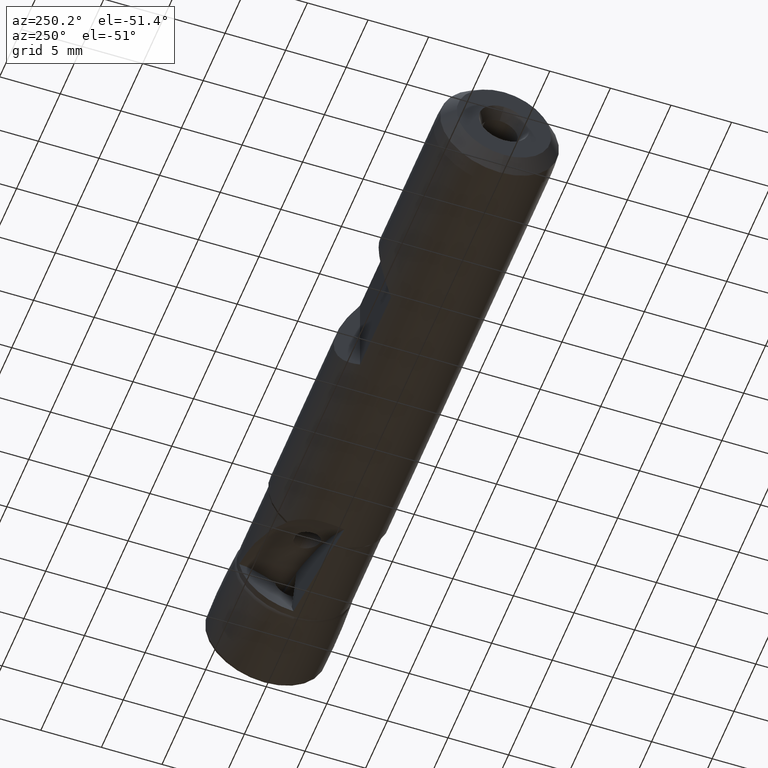
[diagram: clean part render]
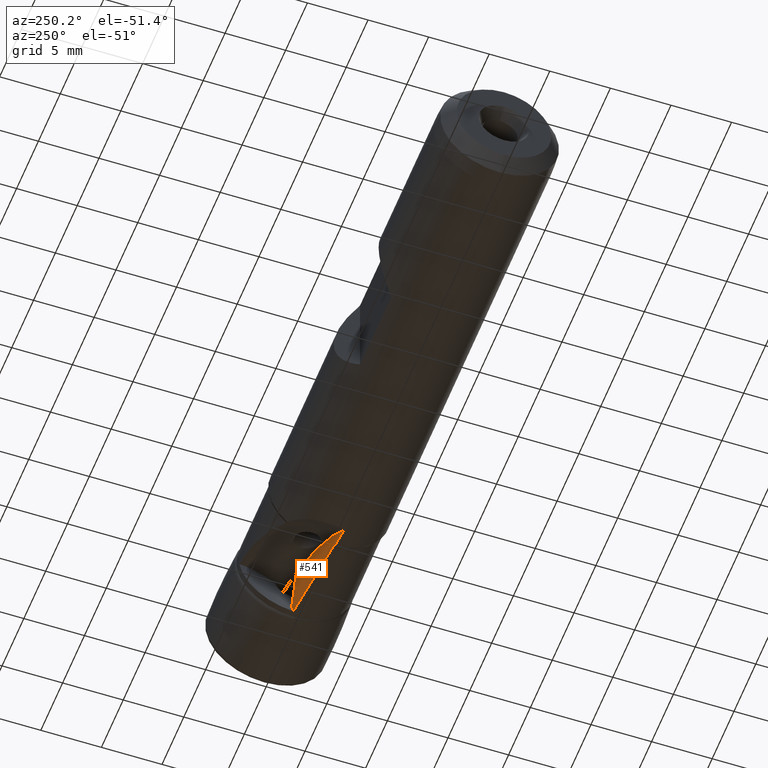
[diagram: same view with one face highlighted and labeled with its STEP entity id]
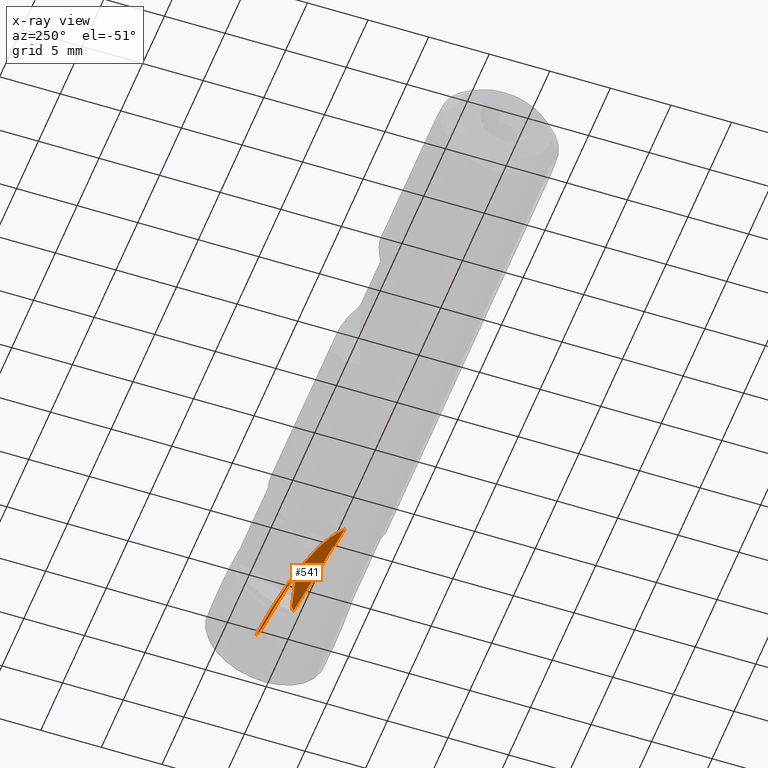
[diagram: x-ray of the same camera — body ghosted, the highlighted face saturated]
A machine part, auxiliary view. The second image highlights one B-rep face of the part: STEP entity #541.
The next image is the same camera in x-ray: the body ghosted, the highlighted face saturated — about 0% of this face is hidden behind the body in this view.
In plain terms, the highlighted planar face has unit normal (0.1045, -0.9945, 0).
Its self-contained STEP definition (entity closure, byte-faithful):
#21 = EDGE_LOOP ( 'NONE', ( #917, #918, #919, #920, #921, #922, #923, #924, #925, #926, #927, #928 ) ) ;
#79 = CARTESIAN_POINT ( 'NONE',  ( -6.999999999999999100, 0.2798337154995120800, -4.819382672258980100 ) ) ;
#116 = VERTEX_POINT ( 'NONE', #79 ) ;
#150 = VERTEX_POINT ( 'NONE', #976 ) ;
#152 = VERTEX_POINT ( 'NONE', #978 ) ;
#194 = VERTEX_POINT ( 'NONE', #1020 ) ;
#202 = VERTEX_POINT ( 'NONE', #1028 ) ;
#203 = VERTEX_POINT ( 'NONE', #1029 ) ;
#205 = VERTEX_POINT ( 'NONE', #1031 ) ;
#206 = VERTEX_POINT ( 'NONE', #1032 ) ;
#208 = VERTEX_POINT ( 'NONE', #1034 ) ;
#211 = VERTEX_POINT ( 'NONE', #1037 ) ;
#213 = VERTEX_POINT ( 'NONE', #1039 ) ;
#215 = VERTEX_POINT ( 'NONE', #1041 ) ;
#340 = EDGE_CURVE ( 'NONE', #150, #152, #1188, .T. ) ;
#404 = EDGE_CURVE ( 'NONE', #194, #202, #628, .T. ) ;
#408 = EDGE_CURVE ( 'NONE', #205, #206, #1592, .T. ) ;
#420 = EDGE_CURVE ( 'NONE', #203, #194, #1193, .T. ) ;
#421 = EDGE_CURVE ( 'NONE', #208, #203, #1632, .T. ) ;
#422 = EDGE_CURVE ( 'NONE', #213, #208, #1635, .T. ) ;
#423 = EDGE_CURVE ( 'NONE', #206, #213, #1628, .T. ) ;
#424 = EDGE_CURVE ( 'NONE', #116, #205, #621, .T. ) ;
#425 = EDGE_CURVE ( 'NONE', #116, #150, #1194, .T. ) ;
#426 = EDGE_CURVE ( 'NONE', #152, #215, #620, .T. ) ;
#427 = EDGE_CURVE ( 'NONE', #211, #215, #1195, .T. ) ;
#428 = EDGE_CURVE ( 'NONE', #211, #202, #1245, .T. ) ;
#541 = ADVANCED_FACE ( 'NONE', ( #2139 ), #2133, .F. ) ;
#620 = B_SPLINE_CURVE_WITH_KNOTS ( 'NONE', 3,
 ( #1646, #1645, #1651, #1652 ),
 .UNSPECIFIED., .F., .F.,
 ( 4, 4 ),
 ( 2.311604905689865100E-007, 0.0003455491212086635000 ),
 .UNSPECIFIED. ) ;
#621 = B_SPLINE_CURVE_WITH_KNOTS ( 'NONE', 3,
 ( #1640, #1636, #1643, #1644 ),
 .UNSPECIFIED., .F., .F.,
 ( 4, 4 ),
 ( 6.007937733050563700E-007, 0.0008763346911108743600 ),
 .UNSPECIFIED. ) ;
#628 = B_SPLINE_CURVE_WITH_KNOTS ( 'NONE', 3,
 ( #1573, #1574, #1579, #1580 ),
 .UNSPECIFIED., .F., .F.,
 ( 4, 4 ),
 ( 0.003773886162193701800, 0.003817054503622150800 ),
 .UNSPECIFIED. ) ;
#917 = ORIENTED_EDGE ( 'NONE', *, *, #420, .F. ) ;
#918 = ORIENTED_EDGE ( 'NONE', *, *, #421, .F. ) ;
#919 = ORIENTED_EDGE ( 'NONE', *, *, #422, .F. ) ;
#920 = ORIENTED_EDGE ( 'NONE', *, *, #423, .F. ) ;
#921 = ORIENTED_EDGE ( 'NONE', *, *, #408, .F. ) ;
#922 = ORIENTED_EDGE ( 'NONE', *, *, #424, .F. ) ;
#923 = ORIENTED_EDGE ( 'NONE', *, *, #425, .T. ) ;
#924 = ORIENTED_EDGE ( 'NONE', *, *, #340, .T. ) ;
#925 = ORIENTED_EDGE ( 'NONE', *, *, #426, .T. ) ;
#926 = ORIENTED_EDGE ( 'NONE', *, *, #427, .F. ) ;
#927 = ORIENTED_EDGE ( 'NONE', *, *, #428, .T. ) ;
#928 = ORIENTED_EDGE ( 'NONE', *, *, #404, .F. ) ;
#976 = CARTESIAN_POINT ( 'NONE',  ( -9.662439955841929200, 0.0000000000000000000, -4.827499999999998800 ) ) ;
#978 = CARTESIAN_POINT ( 'NONE',  ( -14.02801615493746300, -0.4588405478999155200, -4.805644764399766600 ) ) ;
#1020 = CARTESIAN_POINT ( 'NONE',  ( -0.3966148447412630700, 0.9738774624076119700, -0.3263331650438801600 ) ) ;
#1028 = CARTESIAN_POINT ( 'NONE',  ( -0.3982477896618229500, 0.9737058329805025100, -0.2831017122138824700 ) ) ;
#1029 = CARTESIAN_POINT ( 'NONE',  ( -1.466305743472346300, 0.8614484185258409800, -0.6843317908798609600 ) ) ;
#1031 = CARTESIAN_POINT ( 'NONE',  ( -6.708715919186392500, 0.3104489060584870700, -3.994073951974944000 ) ) ;
#1032 = CARTESIAN_POINT ( 'NONE',  ( -7.531106154042046100, 0.2240122093340348200, -0.6774782196467377100 ) ) ;
#1034 = CARTESIAN_POINT ( 'NONE',  ( -2.936566363835542600, 0.7069178003813484400, -0.6249547506639621100 ) ) ;
#1037 = CARTESIAN_POINT ( 'NONE',  ( -16.08015100946154500, -0.6745286124466840500, -4.954292194753108400 ) ) ;
#1039 = CARTESIAN_POINT ( 'NONE',  ( -5.229280125694257800, 0.4659438737581271300, -0.6249547506639462300 ) ) ;
#1041 = CARTESIAN_POINT ( 'NONE',  ( -14.32679491924310300, -0.4902434614358794400, -4.975908092852934700 ) ) ;
#1110 = CARTESIAN_POINT ( 'NONE',  ( -9.662439955841929200, 0.0000000000000000000, -4.827499999999998800 ) ) ;
#1188 =( BOUNDED_CURVE ( )  B_SPLINE_CURVE ( 3, ( #1110, #1348, #1349, #1350 ),
 .UNSPECIFIED., .F., .T. ) 
 B_SPLINE_CURVE_WITH_KNOTS ( ( 4, 4 ),
 ( 1.570796326794896800, 1.665987260166693200 ),
 .UNSPECIFIED. ) 
 CURVE ( )  GEOMETRIC_REPRESENTATION_ITEM ( )  RATIONAL_B_SPLINE_CURVE ( ( 1.000000000000000000, 0.9992450330538030800, 0.9992450330538030800, 1.000000000000000000 ) ) 
 REPRESENTATION_ITEM ( '' )  );
#1193 =( BOUNDED_CURVE ( )  B_SPLINE_CURVE ( 3, ( #1619, #1629, #1630, #1631 ),
 .UNSPECIFIED., .F., .T. ) 
 B_SPLINE_CURVE_WITH_KNOTS ( ( 4, 4 ),
 ( 2.823001390656112000, 2.991663953916867700 ),
 .UNSPECIFIED. ) 
 CURVE ( )  GEOMETRIC_REPRESENTATION_ITEM ( )  RATIONAL_B_SPLINE_CURVE ( ( 1.000000000000000000, 0.9976308162354714500, 0.9976308162354714500, 1.000000000000000000 ) ) 
 REPRESENTATION_ITEM ( '' )  );
#1194 =( BOUNDED_CURVE ( )  B_SPLINE_CURVE ( 3, ( #1642, #1647, #1648, #1649 ),
 .UNSPECIFIED., .F., .T. ) 
 B_SPLINE_CURVE_WITH_KNOTS ( ( 4, 4 ),
 ( 1.512797224635997100, 1.570796326794896800 ),
 .UNSPECIFIED. ) 
 CURVE ( )  GEOMETRIC_REPRESENTATION_ITEM ( )  RATIONAL_B_SPLINE_CURVE ( ( 1.000000000000000000, 0.9997196949906573800, 0.9997196949906573800, 1.000000000000000000 ) ) 
 REPRESENTATION_ITEM ( '' )  );
#1195 =( BOUNDED_CURVE ( )  B_SPLINE_CURVE ( 3, ( #1650, #1654, #1655, #1656 ),
 .UNSPECIFIED., .F., .T. ) 
 B_SPLINE_CURVE_WITH_KNOTS ( ( 4, 4 ),
 ( 4.577070665840139400, 4.614182505286455800 ),
 .UNSPECIFIED. ) 
 CURVE ( )  GEOMETRIC_REPRESENTATION_ITEM ( )  RATIONAL_B_SPLINE_CURVE ( ( 1.000000000000000000, 0.9998852292409754500, 0.9998852292409754500, 1.000000000000000000 ) ) 
 REPRESENTATION_ITEM ( '' )  );
#1220 = AXIS2_PLACEMENT_3D ( 'NONE', #2135, #2141, #2142 ) ;
#1226 = VECTOR ( 'NONE', #1594, 1000.000000000000200 ) ;
#1245 = CIRCLE ( 'NONE', #1287, 20.00000000000000000 ) ;
#1267 = VECTOR ( 'NONE', #1634, 999.9999999999998900 ) ;
#1285 = VECTOR ( 'NONE', #1638, 1000.000000000000100 ) ;
#1287 = AXIS2_PLACEMENT_3D ( 'NONE', #1659, #1660, #1661 ) ;
#1313 = VECTOR ( 'NONE', #1641, 1000.000000000000000 ) ;
#1348 = CARTESIAN_POINT ( 'NONE',  ( -11.12038252183764800, -0.1532359384602382800, -4.827499999999999700 ) ) ;
#1349 = CARTESIAN_POINT ( 'NONE',  ( -12.57667404016319100, -0.3062983448177154000, -4.820209417317646400 ) ) ;
#1350 = CARTESIAN_POINT ( 'NONE',  ( -14.02801615493746300, -0.4588405478999155200, -4.805644764399766600 ) ) ;
#1573 = CARTESIAN_POINT ( 'NONE',  ( -0.3966148447412630700, 0.9738774624076119700, -0.3263331650438801600 ) ) ;
#1574 = CARTESIAN_POINT ( 'NONE',  ( -0.3971938698317418700, 0.9738166044182771100, -0.3119263234047268700 ) ) ;
#1579 = CARTESIAN_POINT ( 'NONE',  ( -0.3977386557874757500, 0.9737593451070161200, -0.2975158885550763200 ) ) ;
#1580 = CARTESIAN_POINT ( 'NONE',  ( -0.3982477896618229500, 0.9737058329805025100, -0.2831017122138824700 ) ) ;
#1592 = LINE ( 'NONE', #1593, #1226 ) ;
#1593 = CARTESIAN_POINT ( 'NONE',  ( -7.406125664383688800, 0.2371481881227043800, -1.181508716431459300 ) ) ;
#1594 = DIRECTION ( 'NONE',  ( -0.2405966221428499900, -0.02528772397782590500, 0.9702957262760008000 ) ) ;
#1619 = CARTESIAN_POINT ( 'NONE',  ( -1.466305743472346300, 0.8614484185258409800, -0.6843317908798609600 ) ) ;
#1628 = LINE ( 'NONE', #1639, #1313 ) ;
#1629 = CARTESIAN_POINT ( 'NONE',  ( -0.9840131856636560300, 0.9121394089886448700, -0.5675450294179180700 ) ) ;
#1630 = CARTESIAN_POINT ( 'NONE',  ( -0.6266027818272522600, 0.9497047561598615000, -0.4479287612186665400 ) ) ;
#1631 = CARTESIAN_POINT ( 'NONE',  ( -0.3966148447412630700, 0.9738774624076119700, -0.3263331650438801600 ) ) ;
#1632 = LINE ( 'NONE', #1633, #1267 ) ;
#1633 = CARTESIAN_POINT ( 'NONE',  ( -3.109859326654790000, 0.6887039760473104800, -0.6179562477591445900 ) ) ;
#1634 = DIRECTION ( 'NONE',  ( 0.9937207036705754100, 0.1044442546269522500, -0.04013179253256699700 ) ) ;
#1635 = LINE ( 'NONE', #1637, #1285 ) ;
#1636 = CARTESIAN_POINT ( 'NONE',  ( -6.902824837938024600, 0.2900472365948519900, -4.544308179831634000 ) ) ;
#1637 = CARTESIAN_POINT ( 'NONE',  ( -3.089139434005144600, 0.6908817245190381800, -0.6249547506639610000 ) ) ;
#1638 = DIRECTION ( 'NONE',  ( 0.9945218953682747300, 0.1045284632676401300, -6.878991850501382500E-015 ) ) ;
#1639 = CARTESIAN_POINT ( 'NONE',  ( -3.078382194176992200, 0.6920123559847453100, -0.5758751853971101300 ) ) ;
#1640 = CARTESIAN_POINT ( 'NONE',  ( -6.999999999999999100, 0.2798337154995120800, -4.819382672258980100 ) ) ;
#1641 = DIRECTION ( 'NONE',  ( 0.9942659147040349100, 0.1045015586156824200, 0.02268733357276723000 ) ) ;
#1642 = CARTESIAN_POINT ( 'NONE',  ( -6.999999999999999100, 0.2798337154995120800, -4.819382672258980100 ) ) ;
#1643 = CARTESIAN_POINT ( 'NONE',  ( -6.805713694112276900, 0.3002540291024311000, -4.269211081831818100 ) ) ;
#1644 = CARTESIAN_POINT ( 'NONE',  ( -6.708715919186392500, 0.3104489060584870700, -3.994073951974944000 ) ) ;
#1645 = CARTESIAN_POINT ( 'NONE',  ( -14.12760582879072000, -0.4693078444106188500, -4.862404968655657600 ) ) ;
#1646 = CARTESIAN_POINT ( 'NONE',  ( -14.02801615493746300, -0.4588405478999155200, -4.805644764399766600 ) ) ;
#1647 = CARTESIAN_POINT ( 'NONE',  ( -7.886608906354680000, 0.1866473644173769200, -4.824793465431116400 ) ) ;
#1648 = CARTESIAN_POINT ( 'NONE',  ( -8.774337726470530900, 0.09334330565581103200, -4.827500000000000600 ) ) ;
#1649 = CARTESIAN_POINT ( 'NONE',  ( -9.662439955841929200, 0.0000000000000000000, -4.827499999999998800 ) ) ;
#1650 = CARTESIAN_POINT ( 'NONE',  ( -16.08015100946154500, -0.6745286124466840500, -4.954292194753108400 ) ) ;
#1651 = CARTESIAN_POINT ( 'NONE',  ( -14.22719886146211000, -0.4797754939473333200, -4.919159214866181400 ) ) ;
#1652 = CARTESIAN_POINT ( 'NONE',  ( -14.32679491924310300, -0.4902434614358794400, -4.975908092852934700 ) ) ;
#1654 = CARTESIAN_POINT ( 'NONE',  ( -15.49700467487551900, -0.6132374629020428400, -4.962637006167534900 ) ) ;
#1655 = CARTESIAN_POINT ( 'NONE',  ( -14.91248555910016700, -0.5518020282403132100, -4.969843132586770900 ) ) ;
#1656 = CARTESIAN_POINT ( 'NONE',  ( -14.32679491924310300, -0.4902434614358794400, -4.975908092852934700 ) ) ;
#1659 = CARTESIAN_POINT ( 'NONE',  ( -3.089139434005141000, 0.6908817245190358400, -20.09923434908519000 ) ) ;
#1660 = DIRECTION ( 'NONE',  ( -0.1045284632676401500, 0.9945218953682748400, -0.0000000000000000000 ) ) ;
#1661 = DIRECTION ( 'NONE',  ( -0.9945218953682747300, -0.1045284632676401600, 0.0000000000000000000 ) ) ;
#2133 = PLANE ( 'NONE',  #1220 ) ;
#2135 = CARTESIAN_POINT ( 'NONE',  ( -3.089139434005141000, 0.6908817245190385100, -0.09923434908519067300 ) ) ;
#2139 = FACE_OUTER_BOUND ( 'NONE', #21, .T. ) ;
#2141 = DIRECTION ( 'NONE',  ( 0.1045284632676401300, -0.9945218953682747300, 0.0000000000000000000 ) ) ;
#2142 = DIRECTION ( 'NONE',  ( 0.9945218953682747300, 0.1045284632676401300, 0.0000000000000000000 ) ) ;